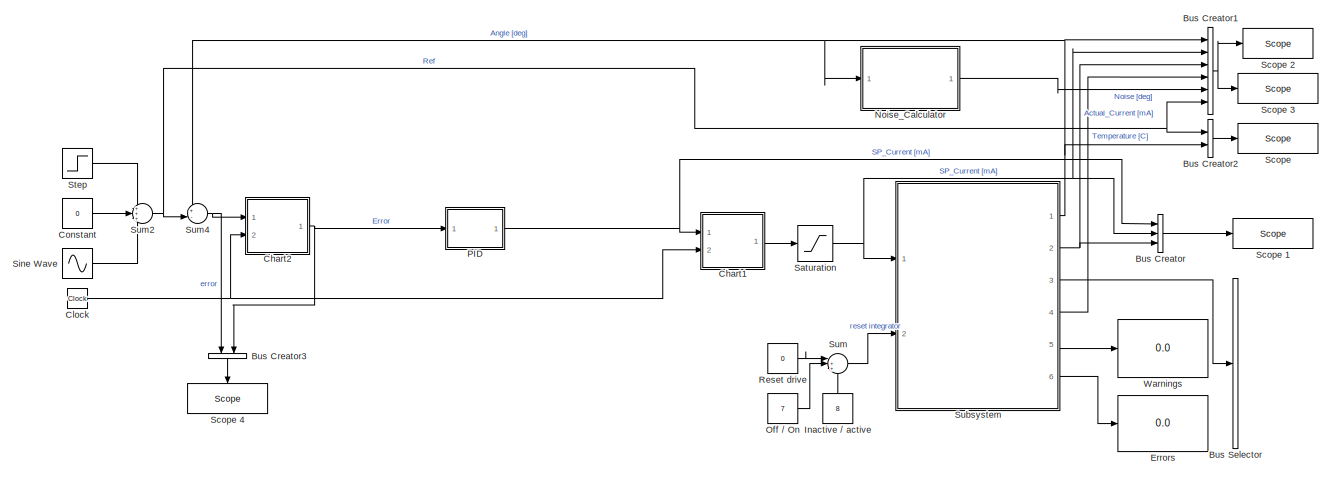
[diagram: root canvas - part 1/2, most of the canvas]
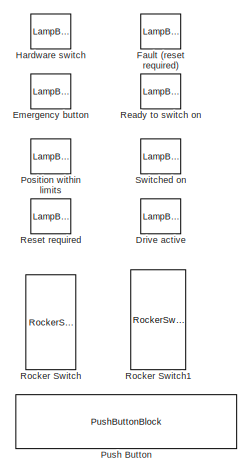
[diagram: root canvas - part 2/2, right side, full height]
MODEL slx_f0bf3d10161d
KIND model
CONFIG AbsTol = auto
CONFIG EnableMultiTasking = on
CONFIG FixedStep = 0.001
CONFIG InitFcn = Ts = 0.001;
CONFIG MaxStep = auto
CONFIG MinStep = auto
CONFIG PreLoadFcn = Ts = 0.001;
CONFIG RelTol = 1e-3
CONFIG SampleTimeConstraint = Unconstrained
CONFIG Solver = FixedStepDiscrete
CONFIG SolverName = FixedStepDiscrete
CONFIG StartTime = 0.0
CONFIG StopTime = inf
BLOCK [BusCreator] Bus Creator
  DisplayOption = bar
  InheritFromInputs = on
  Inputs = 3
  Ports = [3, 1]
BLOCK [BusCreator] Bus Creator1
  DisplayOption = bar
  InheritFromInputs = on
  Inputs = 6
  Ports = [6, 1]
BLOCK [BusCreator] Bus Creator2
  DisplayOption = bar
  InheritFromInputs = on
  Inputs = 2
  Ports = [2, 1]
BLOCK [BusCreator] Bus Creator3
  DisplayOption = bar
  InheritFromInputs = on
  Inputs = 2
  Ports = [2, 1]
BLOCK [BusSelector] Bus Selector
  OutputAsBus = off
  OutputSignals = HW enabled,STO selected,in limits,switch on disable,fault,switched on,ready to switch on,operation enable
  Ports = [1, 8]
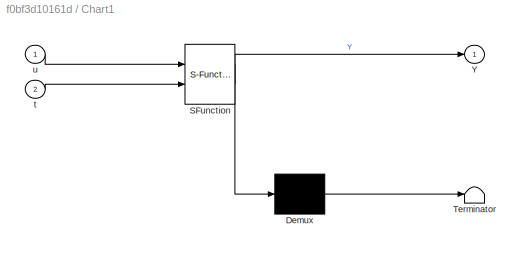
BLOCK [SubSystem] Chart1
  ErrorFcn = Stateflow.Translate.translate
  PermitHierarchicalResolution = ExplicitOnly
  Ports = [2, 1]
  RequestExecContextInheritance = off
  SFBlockType = Chart
  TreatAsAtomicUnit = on
BLOCK [Demux] Chart1/ Demux 
  Outputs = 1
  Ports = [1, 1]
BLOCK [S-Function] Chart1/ SFunction 
  EnableBusSupport = on
  FunctionName = sf_sfun
  PortCounts = [2 2]
  Ports = [2, 2]
  SFcnIsStateOwnerBlock = off
  SFunctionDeploymentMode = off
  Tag = Stateflow S-Function Tflex_PID 4
BLOCK [Terminator] Chart1/ Terminator 
BLOCK [Outport] Chart1/Y
  IconDisplay = Port number
BLOCK [Inport] Chart1/t
  IconDisplay = Port number
  Port = 2
BLOCK [Inport] Chart1/u
  IconDisplay = Port number
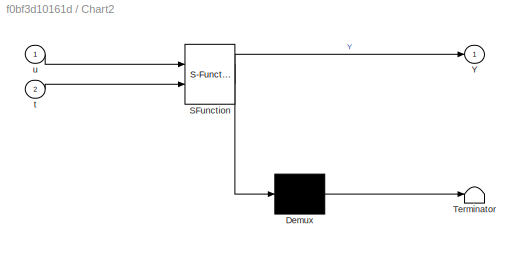
BLOCK [SubSystem] Chart2
  ErrorFcn = Stateflow.Translate.translate
  PermitHierarchicalResolution = ExplicitOnly
  Ports = [2, 1]
  RequestExecContextInheritance = off
  SFBlockType = Chart
  TreatAsAtomicUnit = on
BLOCK [Demux] Chart2/ Demux 
  Outputs = 1
  Ports = [1, 1]
BLOCK [S-Function] Chart2/ SFunction 
  EnableBusSupport = on
  FunctionName = sf_sfun
  PortCounts = [2 2]
  Ports = [2, 2]
  SFcnIsStateOwnerBlock = off
  SFunctionDeploymentMode = off
  Tag = Stateflow S-Function Tflex_PID 1
BLOCK [Terminator] Chart2/ Terminator 
BLOCK [Outport] Chart2/Y
  IconDisplay = Port number
BLOCK [Inport] Chart2/t
  IconDisplay = Port number
  Port = 2
BLOCK [Inport] Chart2/u
  IconDisplay = Port number
BLOCK [Clock] Clock
BLOCK [Constant] Constant
  Value = 0
BLOCK [LampBlock] Drive active
  WebBlockId = 227
BLOCK [LampBlock] Emergency button
  WebBlockId = 221
BLOCK [Display] Errors
  Decimation = 1
  Ports = [1]
BLOCK [LampBlock] Fault (reset required)
  WebBlockId = 224
BLOCK [LampBlock] Hardware switch
  WebBlockId = 218
BLOCK [Constant] Inactive // active
  Value = 8
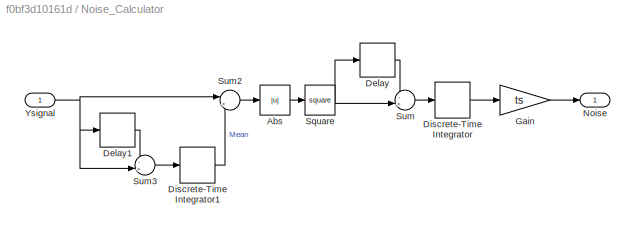
BLOCK [SubSystem] Noise_Calculator
  Ports = [1, 1]
  RequestExecContextInheritance = off
BLOCK [Abs] Noise_Calculator/Abs
  SaturateOnIntegerOverflow = off
BLOCK [Delay] Noise_Calculator/Delay
  DelayLength = 1/ts
  InputPortMap = u0
  Ports = [1, 1]
  SampleTime = ts
BLOCK [Delay] Noise_Calculator/Delay1
  DelayLength = 1/ts
  InputPortMap = u0
  Ports = [1, 1]
BLOCK [DiscreteIntegrator] Noise_Calculator/Discrete-Time Integrator
  ICPrevOutput = DiscIntNeverNeededParam
  ICPrevScaledInput = DiscIntNeverNeededParam
  InitialConditionSetting = Auto
  Ports = [1, 1]
  SampleTime = ts
  gainval = 1
BLOCK [DiscreteIntegrator] Noise_Calculator/Discrete-Time Integrator1
  ICPrevOutput = DiscIntNeverNeededParam
  ICPrevScaledInput = DiscIntNeverNeededParam
  InitialConditionSetting = Auto
  Ports = [1, 1]
  SampleTime = ts
  gainval = 1
BLOCK [Gain] Noise_Calculator/Gain
  Gain = ts
  OutDataTypeStr = Inherit: Inherit via internal rule
  ParamDataTypeStr = Inherit: Inherit via internal rule
  SaturateOnIntegerOverflow = off
BLOCK [Outport] Noise_Calculator/Noise
  IconDisplay = Port number
BLOCK [Math] Noise_Calculator/Square
  Operator = square
  Ports = [1, 1]
BLOCK [Sum] Noise_Calculator/Sum
  IconShape = round
  InputSameDT = off
  Inputs = -+|
  OutDataTypeStr = Inherit: Inherit via internal rule
  Ports = [2, 1]
  SaturateOnIntegerOverflow = off
BLOCK [Sum] Noise_Calculator/Sum2
  IconShape = round
  InputSameDT = off
  Inputs = |+-
  OutDataTypeStr = Inherit: Inherit via internal rule
  Ports = [2, 1]
  SaturateOnIntegerOverflow = off
BLOCK [Sum] Noise_Calculator/Sum3
  IconShape = round
  InputSameDT = off
  Inputs = -+|
  OutDataTypeStr = Inherit: Inherit via internal rule
  Ports = [2, 1]
  SaturateOnIntegerOverflow = off
BLOCK [Inport] Noise_Calculator/Ysignal
  IconDisplay = Port number
BLOCK [Constant] Off // On
  Value = 7
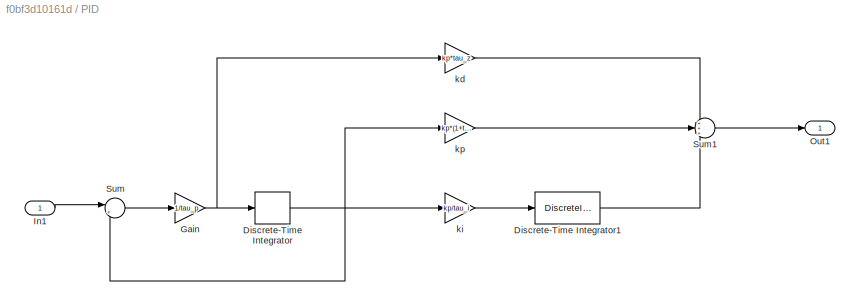
BLOCK [SubSystem] PID 
  Ports = [1, 1]
  RequestExecContextInheritance = off
BLOCK [DiscreteIntegrator] PID /Discrete-Time Integrator
  ICPrevOutput = DiscIntNeverNeededParam
  ICPrevScaledInput = DiscIntNeverNeededParam
  InitialConditionSetting = Auto
  Ports = [1, 1]
  SampleTime = ts
BLOCK [DiscreteIntegrator] PID /Discrete-Time Integrator1
  ICPrevOutput = DiscIntNeverNeededParam
  ICPrevScaledInput = DiscIntNeverNeededParam
  InitialConditionSetting = Auto
  IntegratorMethod = Integration: Trapezoidal
  LimitOutput = on
  LowerSaturationLimit = -I_limit
  Ports = [1, 1]
  SampleTime = ts
  UpperSaturationLimit = I_limit
BLOCK [Gain] PID /Gain
  Gain = 1/tau_p
  OutDataTypeStr = Inherit: Inherit via internal rule
  ParamDataTypeStr = Inherit: Inherit via internal rule
  SaturateOnIntegerOverflow = off
BLOCK [Inport] PID /In1
  IconDisplay = Port number
BLOCK [Outport] PID /Out1
  IconDisplay = Port number
BLOCK [Sum] PID /Sum
  IconShape = round
  InputSameDT = off
  Inputs = |+-
  OutDataTypeStr = Inherit: Inherit via internal rule
  Ports = [2, 1]
  SaturateOnIntegerOverflow = off
BLOCK [Sum] PID /Sum1
  IconShape = round
  InputSameDT = off
  Inputs = +++
  OutDataTypeStr = Inherit: Inherit via internal rule
  Ports = [3, 1]
  SaturateOnIntegerOverflow = off
BLOCK [Gain] PID /kd
  Gain = kp*tau_z
  OutDataTypeStr = Inherit: Inherit via internal rule
  ParamDataTypeStr = Inherit: Inherit via internal rule
  SaturateOnIntegerOverflow = off
BLOCK [Gain] PID /ki
  Gain = kp/tau_i
  OutDataTypeStr = Inherit: Inherit via internal rule
  ParamDataTypeStr = Inherit: Inherit via internal rule
  SaturateOnIntegerOverflow = off
BLOCK [Gain] PID /kp
  Gain = kp*(1+tau_z/tau_i)
  OutDataTypeStr = Inherit: Inherit via internal rule
  ParamDataTypeStr = Inherit: Inherit via internal rule
  SaturateOnIntegerOverflow = off
BLOCK [LampBlock] Position within limits
  WebBlockId = 222
BLOCK [PushButtonBlock] Push Button
  LabelPosition = Top
  OnValue = 128
  WebBlockId = 676
BLOCK [LampBlock] Ready to switch on
  WebBlockId = 226
BLOCK [Constant] Reset drive
  Value = 0
BLOCK [LampBlock] Reset required
  WebBlockId = 223
BLOCK [RockerSwitchBlock] Rocker Switch
  WebBlockId = 231
BLOCK [RockerSwitchBlock] Rocker Switch1
  WebBlockId = 232
BLOCK [Saturate] Saturation
  InputPortMap = u0
  LowerLimit = -I_limit
  Ports = [1, 1]
  UpperLimit = I_limit
BLOCK [Reference] Scope   REF=slrtlib/Displays and
Logging/Scope 
  Ports = [1]
  SourceBlock = slrtlib/Displays and\nLogging/Scope
  SourceProductBaseCode = XP
  SourceProductName = Simulink Real-Time
  SourceType = xpcscopeblock
BLOCK [Reference] Scope 1  REF=slrtlib/Displays and
Logging/Scope 
  Ports = [1]
  SourceBlock = slrtlib/Displays and\nLogging/Scope
  SourceProductBaseCode = XP
  SourceProductName = Simulink Real-Time
  SourceType = xpcscopeblock
BLOCK [Reference] Scope 2  REF=slrtlib/Displays and
Logging/Scope 
  Ports = [1]
  SourceBlock = slrtlib/Displays and\nLogging/Scope
  SourceProductBaseCode = XP
  SourceProductName = Simulink Real-Time
  SourceType = xpcscopeblock
BLOCK [Reference] Scope 3  REF=slrtlib/Displays and
Logging/Scope 
  Ports = [1]
  SourceBlock = slrtlib/Displays and\nLogging/Scope
  SourceProductBaseCode = XP
  SourceProductName = Simulink Real-Time
  SourceType = xpcscopeblock
BLOCK [Reference] Scope 4  REF=slrtlib/Displays and
Logging/Scope 
  Ports = [1]
  SourceBlock = slrtlib/Displays and\nLogging/Scope
  SourceProductBaseCode = XP
  SourceProductName = Simulink Real-Time
  SourceType = xpcscopeblock
BLOCK [Sin] Sine Wave
  Amplitude = 0
  Frequency = 5*pi*2
  Ports = [0, 1]
  SampleTime = 0
BLOCK [Step] Step
  After = 0
  Before = -20
  SampleTime = 0
  Time = 20
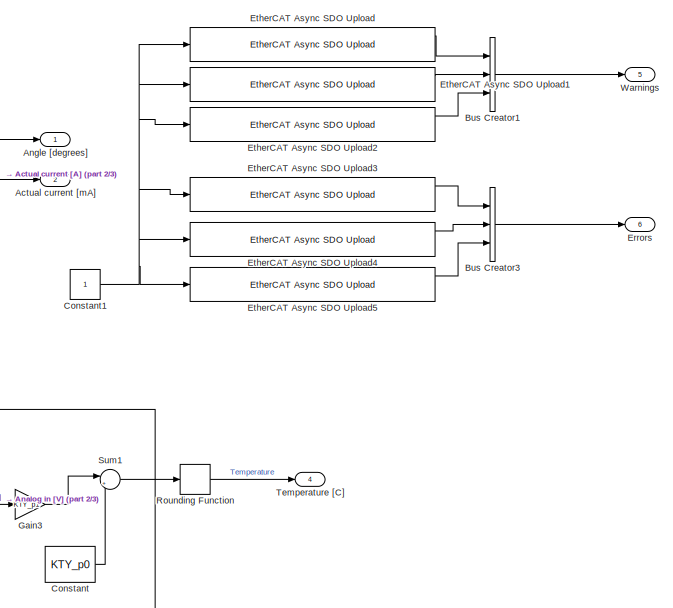
[diagram: Subsystem - part 1/3, top right region]
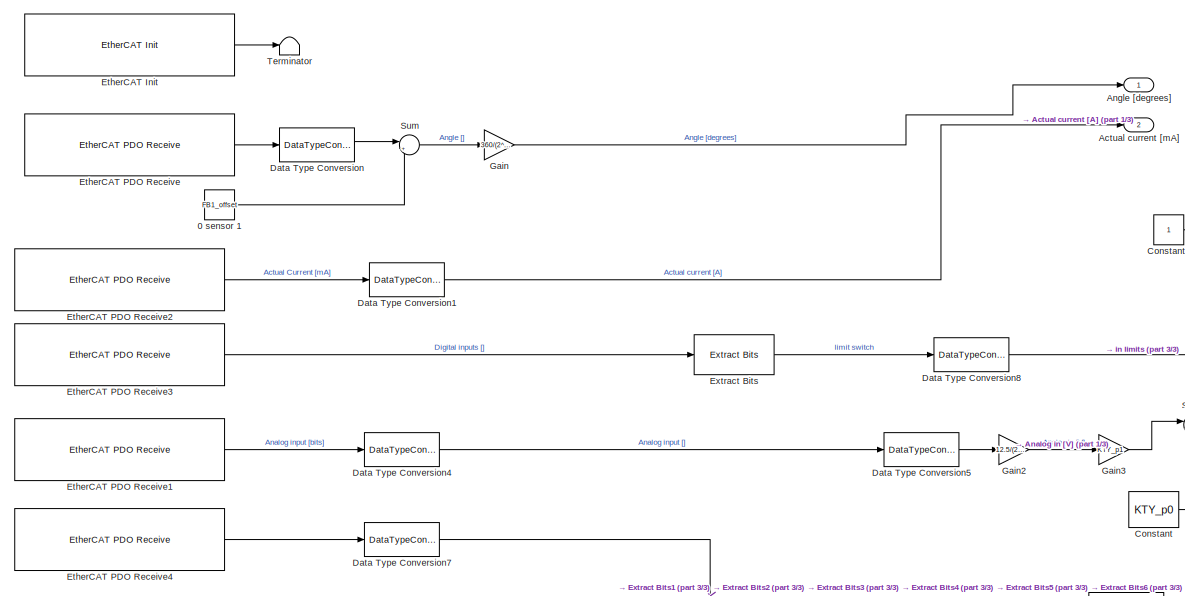
[diagram: Subsystem - part 2/3, top center region]
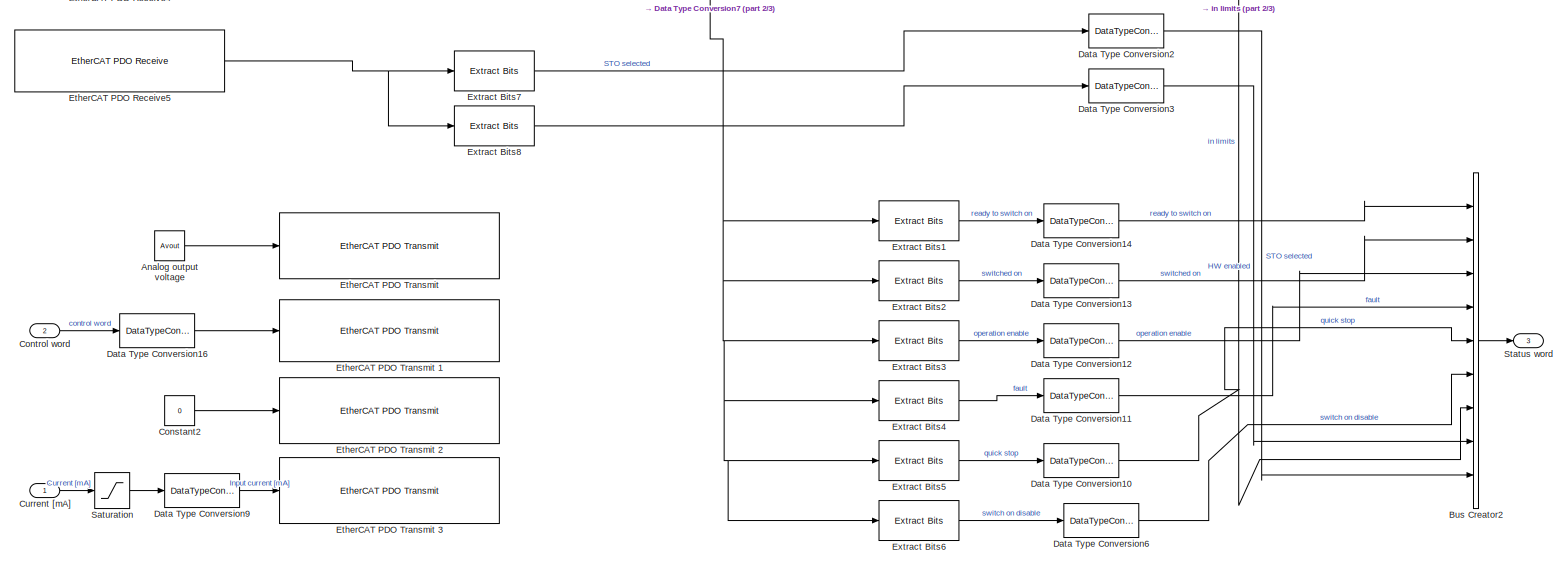
[diagram: Subsystem - part 3/3, full width, bottom band]
BLOCK [SubSystem] Subsystem
  Ports = [2, 6]
  RequestExecContextInheritance = off
BLOCK [Constant] Subsystem/0 sensor 1
  Value = FB1_offset
BLOCK [Outport] Subsystem/Actual current [mA]
  IconDisplay = Port number
  Port = 2
BLOCK [Constant] Subsystem/Analog output voltage
  OutDataTypeStr = int16
  Value = Avout
BLOCK [Outport] Subsystem/Angle [degrees]
  IconDisplay = Port number
BLOCK [BusCreator] Subsystem/Bus Creator1
  DisplayOption = bar
  InheritFromInputs = on
  Inputs = 3
  Ports = [3, 1]
BLOCK [BusCreator] Subsystem/Bus Creator2
  DisplayOption = bar
  InheritFromInputs = on
  Inputs = 9
  Ports = [9, 1]
BLOCK [BusCreator] Subsystem/Bus Creator3
  DisplayOption = bar
  InheritFromInputs = on
  Inputs = 3
  Ports = [3, 1]
BLOCK [Constant] Subsystem/Constant
  Value = KTY_p0
BLOCK [Constant] Subsystem/Constant1
  OutDataTypeStr = int32
BLOCK [Constant] Subsystem/Constant2
  OutDataTypeStr = uint32
  Value = 0
BLOCK [Inport] Subsystem/Control word
  IconDisplay = Port number
  Port = 2
BLOCK [Inport] Subsystem/Current [mA]
  IconDisplay = Port number
BLOCK [DataTypeConversion] Subsystem/Data Type Conversion
  OutDataTypeStr = double
  RndMeth = Floor
  SaturateOnIntegerOverflow = off
BLOCK [DataTypeConversion] Subsystem/Data Type Conversion1
  OutDataTypeStr = double
  RndMeth = Floor
  SaturateOnIntegerOverflow = off
BLOCK [DataTypeConversion] Subsystem/Data Type Conversion10
  OutDataTypeStr = boolean
  RndMeth = Floor
  SaturateOnIntegerOverflow = off
BLOCK [DataTypeConversion] Subsystem/Data Type Conversion11
  OutDataTypeStr = boolean
  RndMeth = Floor
  SaturateOnIntegerOverflow = off
BLOCK [DataTypeConversion] Subsystem/Data Type Conversion12
  OutDataTypeStr = boolean
  RndMeth = Floor
  SaturateOnIntegerOverflow = off
BLOCK [DataTypeConversion] Subsystem/Data Type Conversion13
  OutDataTypeStr = boolean
  RndMeth = Floor
  SaturateOnIntegerOverflow = off
BLOCK [DataTypeConversion] Subsystem/Data Type Conversion14
  OutDataTypeStr = boolean
  RndMeth = Floor
  SaturateOnIntegerOverflow = off
BLOCK [DataTypeConversion] Subsystem/Data Type Conversion16
  OutDataTypeStr = uint16
  RndMeth = Floor
  SaturateOnIntegerOverflow = off
BLOCK [DataTypeConversion] Subsystem/Data Type Conversion2
  OutDataTypeStr = boolean
  RndMeth = Floor
  SaturateOnIntegerOverflow = off
BLOCK [DataTypeConversion] Subsystem/Data Type Conversion3
  OutDataTypeStr = boolean
  RndMeth = Floor
  SaturateOnIntegerOverflow = off
BLOCK [DataTypeConversion] Subsystem/Data Type Conversion4
  OutDataTypeStr = int32
  RndMeth = Floor
  SaturateOnIntegerOverflow = off
BLOCK [DataTypeConversion] Subsystem/Data Type Conversion5
  OutDataTypeStr = double
  RndMeth = Floor
  SaturateOnIntegerOverflow = off
BLOCK [DataTypeConversion] Subsystem/Data Type Conversion6
  OutDataTypeStr = boolean
  RndMeth = Floor
  SaturateOnIntegerOverflow = off
BLOCK [DataTypeConversion] Subsystem/Data Type Conversion7
  OutDataTypeStr = uint16
  RndMeth = Round
  SaturateOnIntegerOverflow = off
BLOCK [DataTypeConversion] Subsystem/Data Type Conversion8
  OutDataTypeStr = boolean
  RndMeth = Floor
  SaturateOnIntegerOverflow = off
BLOCK [DataTypeConversion] Subsystem/Data Type Conversion9
  OutDataTypeStr = int32
  RndMeth = Floor
  SaturateOnIntegerOverflow = off
BLOCK [Outport] Subsystem/Errors
  IconDisplay = Port number
  Port = 6
BLOCK [Reference] Subsystem/EtherCAT Async SDO Upload  REF=xpcethercatlib/EtherCAT Async SDO Upload
  Ports = [1, 3]
  SourceBlock = xpcethercatlib/EtherCAT Async SDO Upload
  SourceProductBaseCode = XP
  SourceProductName = Simulink Real-Time
  SourceType = ethercatasyncsdoupload
BLOCK [Reference] Subsystem/EtherCAT Async SDO Upload1  REF=xpcethercatlib/EtherCAT Async SDO Upload
  Ports = [1, 3]
  SourceBlock = xpcethercatlib/EtherCAT Async SDO Upload
  SourceProductBaseCode = XP
  SourceProductName = Simulink Real-Time
  SourceType = ethercatasyncsdoupload
BLOCK [Reference] Subsystem/EtherCAT Async SDO Upload2  REF=xpcethercatlib/EtherCAT Async SDO Upload
  Ports = [1, 3]
  SourceBlock = xpcethercatlib/EtherCAT Async SDO Upload
  SourceProductBaseCode = XP
  SourceProductName = Simulink Real-Time
  SourceType = ethercatasyncsdoupload
BLOCK [Reference] Subsystem/EtherCAT Async SDO Upload3  REF=xpcethercatlib/EtherCAT Async SDO Upload
  Ports = [1, 3]
  SourceBlock = xpcethercatlib/EtherCAT Async SDO Upload
  SourceProductBaseCode = XP
  SourceProductName = Simulink Real-Time
  SourceType = ethercatasyncsdoupload
BLOCK [Reference] Subsystem/EtherCAT Async SDO Upload4  REF=xpcethercatlib/EtherCAT Async SDO Upload
  Ports = [1, 3]
  SourceBlock = xpcethercatlib/EtherCAT Async SDO Upload
  SourceProductBaseCode = XP
  SourceProductName = Simulink Real-Time
  SourceType = ethercatasyncsdoupload
BLOCK [Reference] Subsystem/EtherCAT Async SDO Upload5  REF=xpcethercatlib/EtherCAT Async SDO Upload
  Ports = [1, 3]
  SourceBlock = xpcethercatlib/EtherCAT Async SDO Upload
  SourceProductBaseCode = XP
  SourceProductName = Simulink Real-Time
  SourceType = ethercatasyncsdoupload
BLOCK [Reference] Subsystem/EtherCAT Init   REF=xpcethercatlib/EtherCAT Init 
  Ports = [0, 1]
  Priority = 0
  SourceBlock = xpcethercatlib/EtherCAT Init
  SourceProductBaseCode = XP
  SourceProductName = Simulink Real-Time
  SourceType = xpcethercatinit
BLOCK [Reference] Subsystem/EtherCAT PDO Receive  REF=xpcethercatlib/EtherCAT PDO Receive
  Ports = [0, 1]
  Priority = 2
  SourceBlock = xpcethercatlib/EtherCAT PDO Receive
  SourceProductBaseCode = XP
  SourceProductName = Simulink Real-Time
  SourceType = xpcethercat_rx_var
BLOCK [Reference] Subsystem/EtherCAT PDO Receive1  REF=xpcethercatlib/EtherCAT PDO Receive
  Ports = [0, 1]
  Priority = 2
  SourceBlock = xpcethercatlib/EtherCAT PDO Receive
  SourceProductBaseCode = XP
  SourceProductName = Simulink Real-Time
  SourceType = xpcethercat_rx_var
BLOCK [Reference] Subsystem/EtherCAT PDO Receive2  REF=xpcethercatlib/EtherCAT PDO Receive
  Ports = [0, 1]
  Priority = 2
  SourceBlock = xpcethercatlib/EtherCAT PDO Receive
  SourceProductBaseCode = XP
  SourceProductName = Simulink Real-Time
  SourceType = xpcethercat_rx_var
BLOCK [Reference] Subsystem/EtherCAT PDO Receive3  REF=xpcethercatlib/EtherCAT PDO Receive
  Ports = [0, 1]
  Priority = 2
  SourceBlock = xpcethercatlib/EtherCAT PDO Receive
  SourceProductBaseCode = XP
  SourceProductName = Simulink Real-Time
  SourceType = xpcethercat_rx_var
BLOCK [Reference] Subsystem/EtherCAT PDO Receive4  REF=xpcethercatlib/EtherCAT PDO Receive
  Ports = [0, 1]
  Priority = 2
  SourceBlock = xpcethercatlib/EtherCAT PDO Receive
  SourceProductBaseCode = XP
  SourceProductName = Simulink Real-Time
  SourceType = xpcethercat_rx_var
BLOCK [Reference] Subsystem/EtherCAT PDO Receive5  REF=xpcethercatlib/EtherCAT PDO Receive
  Ports = [0, 1]
  Priority = 2
  SourceBlock = xpcethercatlib/EtherCAT PDO Receive
  SourceProductBaseCode = XP
  SourceProductName = Simulink Real-Time
  SourceType = xpcethercat_rx_var
BLOCK [Reference] Subsystem/EtherCAT PDO Transmit   REF=xpcethercatlib/EtherCAT PDO Transmit 
  Ports = [1]
  Priority = 3
  SourceBlock = xpcethercatlib/EtherCAT PDO Transmit
  SourceProductBaseCode = XP
  SourceProductName = Simulink Real-Time
  SourceType = xpcethercat_tx_var
BLOCK [Reference] Subsystem/EtherCAT PDO Transmit 1  REF=xpcethercatlib/EtherCAT PDO Transmit 
  Ports = [1]
  Priority = 3
  SourceBlock = xpcethercatlib/EtherCAT PDO Transmit
  SourceProductBaseCode = XP
  SourceProductName = Simulink Real-Time
  SourceType = xpcethercat_tx_var
BLOCK [Reference] Subsystem/EtherCAT PDO Transmit 2  REF=xpcethercatlib/EtherCAT PDO Transmit 
  Ports = [1]
  Priority = 3
  SourceBlock = xpcethercatlib/EtherCAT PDO Transmit
  SourceProductBaseCode = XP
  SourceProductName = Simulink Real-Time
  SourceType = xpcethercat_tx_var
BLOCK [Reference] Subsystem/EtherCAT PDO Transmit 3  REF=xpcethercatlib/EtherCAT PDO Transmit 
  Ports = [1]
  Priority = 3
  SourceBlock = xpcethercatlib/EtherCAT PDO Transmit
  SourceProductBaseCode = XP
  SourceProductName = Simulink Real-Time
  SourceType = xpcethercat_tx_var
BLOCK [Reference] Subsystem/Extract Bits  REF=simulink/Logic and Bit
Operations/Extract Bits
  Ports = [1, 1]
  SourceBlock = simulink/Logic and Bit\nOperations/Extract Bits
  SourceProductBaseCode = SL
  SourceProductName = Simulink
  SourceType = Extract Bits
BLOCK [Reference] Subsystem/Extract Bits1  REF=simulink/Logic and Bit
Operations/Extract Bits
  Ports = [1, 1]
  SourceBlock = simulink/Logic and Bit\nOperations/Extract Bits
  SourceProductBaseCode = SL
  SourceProductName = Simulink
  SourceType = Extract Bits
BLOCK [Reference] Subsystem/Extract Bits2  REF=simulink/Logic and Bit
Operations/Extract Bits
  Ports = [1, 1]
  SourceBlock = simulink/Logic and Bit\nOperations/Extract Bits
  SourceProductBaseCode = SL
  SourceProductName = Simulink
  SourceType = Extract Bits
BLOCK [Reference] Subsystem/Extract Bits3  REF=simulink/Logic and Bit
Operations/Extract Bits
  Ports = [1, 1]
  SourceBlock = simulink/Logic and Bit\nOperations/Extract Bits
  SourceProductBaseCode = SL
  SourceProductName = Simulink
  SourceType = Extract Bits
BLOCK [Reference] Subsystem/Extract Bits4  REF=simulink/Logic and Bit
Operations/Extract Bits
  Ports = [1, 1]
  SourceBlock = simulink/Logic and Bit\nOperations/Extract Bits
  SourceProductBaseCode = SL
  SourceProductName = Simulink
  SourceType = Extract Bits
BLOCK [Reference] Subsystem/Extract Bits5  REF=simulink/Logic and Bit
Operations/Extract Bits
  Ports = [1, 1]
  SourceBlock = simulink/Logic and Bit\nOperations/Extract Bits
  SourceProductBaseCode = SL
  SourceProductName = Simulink
  SourceType = Extract Bits
BLOCK [Reference] Subsystem/Extract Bits6  REF=simulink/Logic and Bit
Operations/Extract Bits
  Ports = [1, 1]
  SourceBlock = simulink/Logic and Bit\nOperations/Extract Bits
  SourceProductBaseCode = SL
  SourceProductName = Simulink
  SourceType = Extract Bits
BLOCK [Reference] Subsystem/Extract Bits7  REF=simulink/Logic and Bit
Operations/Extract Bits
  Ports = [1, 1]
  SourceBlock = simulink/Logic and Bit\nOperations/Extract Bits
  SourceProductBaseCode = SL
  SourceProductName = Simulink
  SourceType = Extract Bits
BLOCK [Reference] Subsystem/Extract Bits8  REF=simulink/Logic and Bit
Operations/Extract Bits
  Ports = [1, 1]
  SourceBlock = simulink/Logic and Bit\nOperations/Extract Bits
  SourceProductBaseCode = SL
  SourceProductName = Simulink
  SourceType = Extract Bits
BLOCK [Gain] Subsystem/Gain
  Gain = 360/(2^32)
  OutDataTypeStr = Inherit: Inherit via internal rule
  ParamDataTypeStr = Inherit: Inherit via internal rule
  SaturateOnIntegerOverflow = off
BLOCK [Gain] Subsystem/Gain2
  Gain = 12.5/(2^15-1)
  OutDataTypeStr = Inherit: Inherit via internal rule
  ParamDataTypeStr = Inherit: Inherit via internal rule
  SaturateOnIntegerOverflow = off
BLOCK [Gain] Subsystem/Gain3
  Gain = KTY_p1
  OutDataTypeStr = Inherit: Inherit via internal rule
  ParamDataTypeStr = Inherit: Inherit via internal rule
  SaturateOnIntegerOverflow = off
BLOCK [Rounding] Subsystem/Rounding Function
BLOCK [Saturate] Subsystem/Saturation
  InputPortMap = u0
  LowerLimit = -I_limit
  Ports = [1, 1]
  UpperLimit = I_limit
BLOCK [Outport] Subsystem/Status word
  IconDisplay = Port number
  Port = 3
BLOCK [Sum] Subsystem/Sum
  IconShape = round
  InputSameDT = off
  Inputs = |+-
  OutDataTypeStr = Inherit: Inherit via internal rule
  Ports = [2, 1]
  SaturateOnIntegerOverflow = off
BLOCK [Sum] Subsystem/Sum1
  IconShape = round
  InputSameDT = off
  Inputs = |++
  OutDataTypeStr = double
  Ports = [2, 1]
  SaturateOnIntegerOverflow = off
BLOCK [Outport] Subsystem/Temperature [C]
  IconDisplay = Port number
  Port = 4
BLOCK [Terminator] Subsystem/Terminator
BLOCK [Outport] Subsystem/Warnings
  IconDisplay = Port number
  Port = 5
BLOCK [Sum] Sum
  IconShape = round
  InputSameDT = off
  Inputs = |+++
  OutDataTypeStr = Inherit: Inherit via internal rule
  Ports = [3, 1]
  SaturateOnIntegerOverflow = off
BLOCK [Sum] Sum2
  IconShape = round
  InputSameDT = off
  Inputs = +++
  OutDataTypeStr = Inherit: Inherit via internal rule
  Ports = [3, 1]
  SaturateOnIntegerOverflow = off
BLOCK [Sum] Sum4
  IconShape = round
  InputSameDT = off
  Inputs = +-|
  OutDataTypeStr = Inherit: Inherit via internal rule
  Ports = [2, 1]
  SaturateOnIntegerOverflow = off
BLOCK [LampBlock] Switched on
  WebBlockId = 225
BLOCK [Display] Warnings
  Decimation = 1
  Ports = [1]
NET Bus Creator1:1 -> Scope 2:1, Scope 3:1
LINE Bus Creator2:1 -> Scope :1
LINE Bus Creator3:1 -> Scope 4:1
LINE Bus Creator:1 -> Scope 1:1
LINE Chart1:1 -> Saturation:1
NET Chart2:1 -> Bus Creator3:2, PID :1
NET Clock:1 -> Chart1:2, Chart2:2
LINE Constant:1 -> Sum2:2
LINE Inactive // active:1 -> Sum:3
LINE Noise_Calculator/Abs:1 -> Noise_Calculator/Square:1
LINE Noise_Calculator/Delay1:1 -> Noise_Calculator/Sum3:1
LINE Noise_Calculator/Delay:1 -> Noise_Calculator/Sum:1
LINE Noise_Calculator/Discrete-Time Integrator1:1 -> Noise_Calculator/Sum2:2
LINE Noise_Calculator/Discrete-Time Integrator:1 -> Noise_Calculator/Gain:1
LINE Noise_Calculator/Gain:1 -> Noise_Calculator/Noise:1
NET Noise_Calculator/Square:1 -> Noise_Calculator/Delay:1, Noise_Calculator/Sum:2
LINE Noise_Calculator/Sum2:1 -> Noise_Calculator/Abs:1
LINE Noise_Calculator/Sum3:1 -> Noise_Calculator/Discrete-Time Integrator1:1
LINE Noise_Calculator/Sum:1 -> Noise_Calculator/Discrete-Time Integrator:1
NET Noise_Calculator/Ysignal:1 -> Noise_Calculator/Delay1:1, Noise_Calculator/Sum2:1, Noise_Calculator/Sum3:2
LINE Noise_Calculator:1 -> Bus Creator1:5
LINE Off // On:1 -> Sum:2
LINE PID /Discrete-Time Integrator1:1 -> PID /Sum1:3
NET PID /Discrete-Time Integrator:1 -> PID /Sum:2, PID /ki:1, PID /kp:1
NET PID /Gain:1 -> PID /Discrete-Time Integrator:1, PID /kd:1
LINE PID /In1:1 -> PID /Sum:1
LINE PID /Sum1:1 -> PID /Out1:1
LINE PID /Sum:1 -> PID /Gain:1
LINE PID /kd:1 -> PID /Sum1:1
LINE PID /ki:1 -> PID /Discrete-Time Integrator1:1
LINE PID /kp:1 -> PID /Sum1:2
NET PID :1 -> Bus Creator:1, Chart1:1
LINE Reset drive:1 -> Sum:1
NET Saturation:1 -> Bus Creator1:2, Bus Creator:2, Subsystem:1
LINE Sine Wave:1 -> Sum2:3
LINE Step:1 -> Sum2:1
LINE Subsystem/0 sensor 1:1 -> Subsystem/Sum:2
LINE Subsystem/Analog output voltage:1 -> Subsystem/EtherCAT PDO Transmit :1
LINE Subsystem/Bus Creator1:1 -> Subsystem/Warnings:1
LINE Subsystem/Bus Creator2:1 -> Subsystem/Status word:1
LINE Subsystem/Bus Creator3:1 -> Subsystem/Errors:1
NET Subsystem/Constant1:1 -> Subsystem/EtherCAT Async SDO Upload1:1, Subsystem/EtherCAT Async SDO Upload2:1, Subsystem/EtherCAT Async SDO Upload3:1, Subsystem/EtherCAT Async SDO Upload4:1, Subsystem/EtherCAT Async SDO Upload5:1, Subsystem/EtherCAT Async SDO Upload:1
LINE Subsystem/Constant2:1 -> Subsystem/EtherCAT PDO Transmit 2:1
LINE Subsystem/Constant:1 -> Subsystem/Sum1:2
LINE Subsystem/Control word:1 -> Subsystem/Data Type Conversion16:1
LINE Subsystem/Current [mA]:1 -> Subsystem/Saturation:1
LINE Subsystem/Data Type Conversion10:1 -> Subsystem/Bus Creator2:5
LINE Subsystem/Data Type Conversion11:1 -> Subsystem/Bus Creator2:4
LINE Subsystem/Data Type Conversion12:1 -> Subsystem/Bus Creator2:3
LINE Subsystem/Data Type Conversion13:1 -> Subsystem/Bus Creator2:2
LINE Subsystem/Data Type Conversion14:1 -> Subsystem/Bus Creator2:1
LINE Subsystem/Data Type Conversion16:1 -> Subsystem/EtherCAT PDO Transmit 1:1
LINE Subsystem/Data Type Conversion1:1 -> Subsystem/Actual current [mA]:1
LINE Subsystem/Data Type Conversion2:1 -> Subsystem/Bus Creator2:9
LINE Subsystem/Data Type Conversion3:1 -> Subsystem/Bus Creator2:8
LINE Subsystem/Data Type Conversion4:1 -> Subsystem/Data Type Conversion5:1
LINE Subsystem/Data Type Conversion5:1 -> Subsystem/Gain2:1
LINE Subsystem/Data Type Conversion6:1 -> Subsystem/Bus Creator2:6
NET Subsystem/Data Type Conversion7:1 -> Subsystem/Extract Bits1:1, Subsystem/Extract Bits2:1, Subsystem/Extract Bits3:1, Subsystem/Extract Bits4:1, Subsystem/Extract Bits5:1, Subsystem/Extract Bits6:1
LINE Subsystem/Data Type Conversion8:1 -> Subsystem/Bus Creator2:7
LINE Subsystem/Data Type Conversion9:1 -> Subsystem/EtherCAT PDO Transmit 3:1
LINE Subsystem/Data Type Conversion:1 -> Subsystem/Sum:1
LINE Subsystem/EtherCAT Async SDO Upload1:1 -> Subsystem/Bus Creator1:2
LINE Subsystem/EtherCAT Async SDO Upload2:1 -> Subsystem/Bus Creator1:3
LINE Subsystem/EtherCAT Async SDO Upload3:1 -> Subsystem/Bus Creator3:1
LINE Subsystem/EtherCAT Async SDO Upload4:1 -> Subsystem/Bus Creator3:2
LINE Subsystem/EtherCAT Async SDO Upload5:1 -> Subsystem/Bus Creator3:3
LINE Subsystem/EtherCAT Async SDO Upload:1 -> Subsystem/Bus Creator1:1
LINE Subsystem/EtherCAT Init :1 -> Subsystem/Terminator:1
LINE Subsystem/EtherCAT PDO Receive1:1 -> Subsystem/Data Type Conversion4:1
LINE Subsystem/EtherCAT PDO Receive2:1 -> Subsystem/Data Type Conversion1:1
LINE Subsystem/EtherCAT PDO Receive3:1 -> Subsystem/Extract Bits:1
LINE Subsystem/EtherCAT PDO Receive4:1 -> Subsystem/Data Type Conversion7:1
NET Subsystem/EtherCAT PDO Receive5:1 -> Subsystem/Extract Bits7:1, Subsystem/Extract Bits8:1
LINE Subsystem/EtherCAT PDO Receive:1 -> Subsystem/Data Type Conversion:1
LINE Subsystem/Extract Bits1:1 -> Subsystem/Data Type Conversion14:1
LINE Subsystem/Extract Bits2:1 -> Subsystem/Data Type Conversion13:1
LINE Subsystem/Extract Bits3:1 -> Subsystem/Data Type Conversion12:1
LINE Subsystem/Extract Bits4:1 -> Subsystem/Data Type Conversion11:1
LINE Subsystem/Extract Bits5:1 -> Subsystem/Data Type Conversion10:1
LINE Subsystem/Extract Bits6:1 -> Subsystem/Data Type Conversion6:1
LINE Subsystem/Extract Bits7:1 -> Subsystem/Data Type Conversion2:1
LINE Subsystem/Extract Bits8:1 -> Subsystem/Data Type Conversion3:1
LINE Subsystem/Extract Bits:1 -> Subsystem/Data Type Conversion8:1
LINE Subsystem/Gain2:1 -> Subsystem/Gain3:1
LINE Subsystem/Gain3:1 -> Subsystem/Sum1:1
LINE Subsystem/Gain:1 -> Subsystem/Angle [degrees]:1
LINE Subsystem/Rounding Function:1 -> Subsystem/Temperature [C]:1
LINE Subsystem/Saturation:1 -> Subsystem/Data Type Conversion9:1
LINE Subsystem/Sum1:1 -> Subsystem/Rounding Function:1
LINE Subsystem/Sum:1 -> Subsystem/Gain:1
NET Subsystem:1 -> Bus Creator1:1, Bus Creator2:2, Noise_Calculator:1, Sum4:1
NET Subsystem:2 -> Bus Creator1:3, Bus Creator:3
LINE Subsystem:3 -> Bus Selector:1
LINE Subsystem:4 -> Bus Creator1:4
LINE Subsystem:5 -> Warnings:1
LINE Subsystem:6 -> Errors:1
NET Sum2:1 -> Bus Creator1:6, Bus Creator2:1, Sum4:2
NET Sum4:1 -> Bus Creator3:1, Chart2:1
LINE Sum:1 -> Subsystem:2
note: NET lines group one-source signal fan-out (src -> all destinations, sorted); 1:1 wires keep LINE
CHART Chart2 states=3 transitions=5
  STATE_LABEL 'ON\nY=0;'
  STATE_LABEL 'OFF\nY=0;'
  STATE_LABEL 'OFF1\nY=u;'
CHART Chart1 states=2 transitions=3
  STATE_LABEL 'OFF2\nY=0;'
  STATE_LABEL 'ON\nY=u;'
